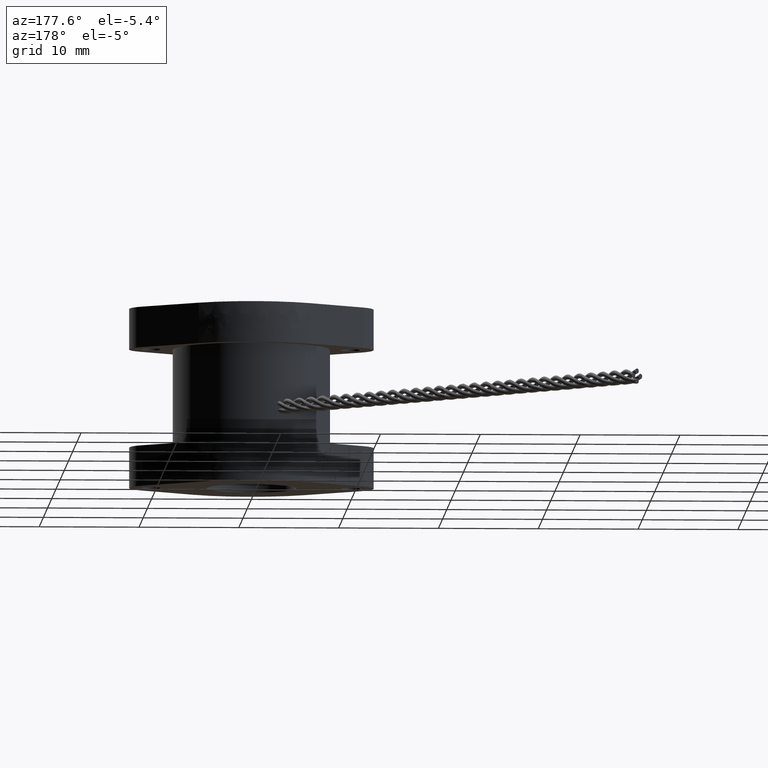
[diagram: clean part render]
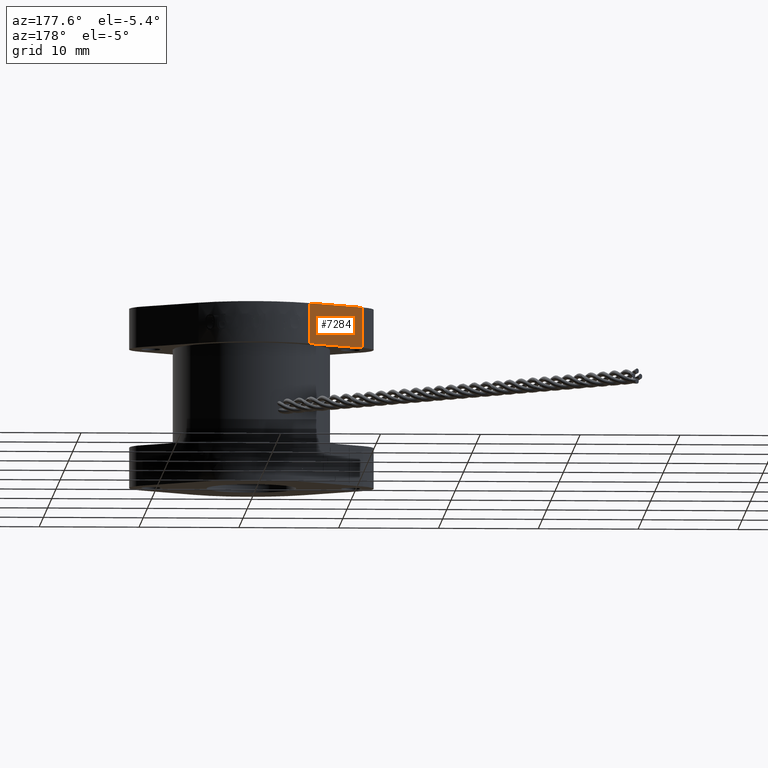
[diagram: same view with one face highlighted and labeled with its STEP entity id]
A machine part, auxiliary view. The second image highlights one B-rep face of the part: STEP entity #7284.
In plain terms, the highlighted planar face has unit normal (0.6278, -0.7784, 0).
Its self-contained STEP definition (entity closure, byte-faithful):
#731=PLANE('',#7689);
#1095=FACE_OUTER_BOUND('',#1508,.T.);
#1508=EDGE_LOOP('',(#6394,#6395,#6396,#6397));
#1858=LINE('',#12226,#2398);
#2228=LINE('',#15809,#2768);
#2230=LINE('',#15817,#2770);
#2231=LINE('',#15818,#2771);
#2398=VECTOR('',#8082,39.3700787401575);
#2768=VECTOR('',#8912,0.393700787401575);
#2770=VECTOR('',#8920,39.3700787401575);
#2771=VECTOR('',#8921,39.3700787401575);
#3021=VERTEX_POINT('',#12223);
#3022=VERTEX_POINT('',#12225);
#3446=VERTEX_POINT('',#15807);
#3449=VERTEX_POINT('',#15816);
#3821=EDGE_CURVE('',#3022,#3021,#1858,.T.);
#4448=EDGE_CURVE('',#3021,#3446,#2228,.T.);
#4452=EDGE_CURVE('',#3449,#3446,#2230,.T.);
#4453=EDGE_CURVE('',#3022,#3449,#2231,.T.);
#6394=ORIENTED_EDGE('',*,*,#4448,.T.);
#6395=ORIENTED_EDGE('',*,*,#4452,.F.);
#6396=ORIENTED_EDGE('',*,*,#4453,.F.);
#6397=ORIENTED_EDGE('',*,*,#3821,.T.);
#7284=ADVANCED_FACE('',(#1095),#731,.F.);
#7689=AXIS2_PLACEMENT_3D('',#15815,#8918,#8919);
#8082=DIRECTION('',(0.,0.,-1.));
#8912=DIRECTION('',(-0.778392614127597,-0.627777777777778,0.));
#8918=DIRECTION('center_axis',(0.627777777777778,-0.778392614127597,0.));
#8919=DIRECTION('ref_axis',(0.778392614127597,0.627777777777778,0.));
#8920=DIRECTION('',(0.,0.,-1.));
#8921=DIRECTION('',(-0.778392614127597,-0.627777777777778,0.));
#12223=CARTESIAN_POINT('',(-0.219969378827647,0.272743868729749,0.194330708661417));
#12225=CARTESIAN_POINT('',(-0.219969378827647,0.272743868729749,0.354330708661417));
#12226=CARTESIAN_POINT('',(-0.219969378827647,0.272743868729749,0.354330708661417));
#15807=CARTESIAN_POINT('',(-0.434656605424322,0.0995974801541217,0.194330708661417));
#15809=CARTESIAN_POINT('',(-0.421226726693886,0.110428748683908,0.194330708661417));
#15815=CARTESIAN_POINT('Origin',(-0.434656605424322,0.0995974801541218,
0.354330708661417));
#15816=CARTESIAN_POINT('',(-0.434656605424322,0.0995974801541217,0.354330708661417));
#15817=CARTESIAN_POINT('',(-0.434656605424322,0.0995974801541217,0.354330708661417));
#15818=CARTESIAN_POINT('',(-0.434656605424322,0.0995974801541218,0.354330708661417));